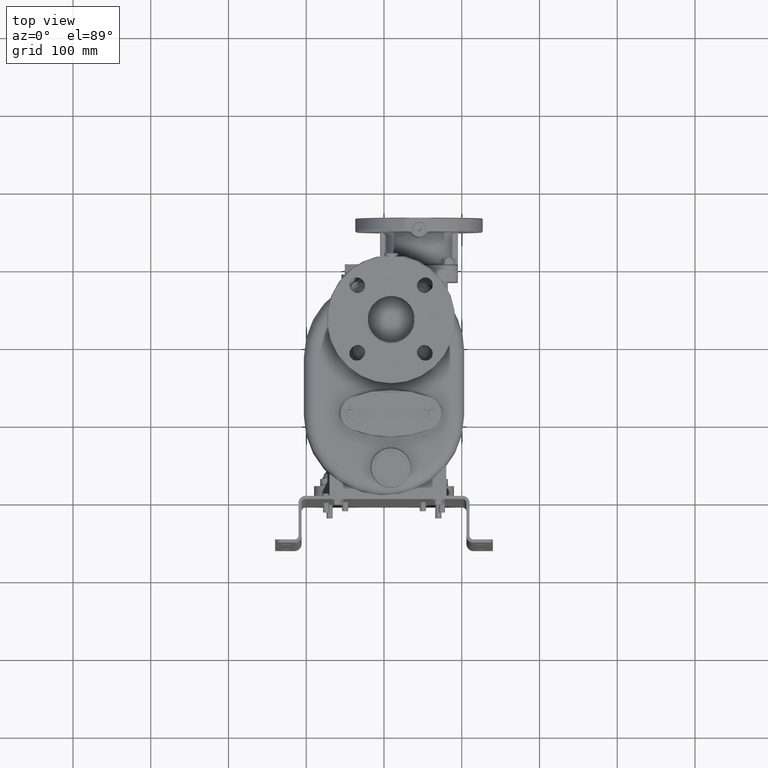
[diagram: clean part render]
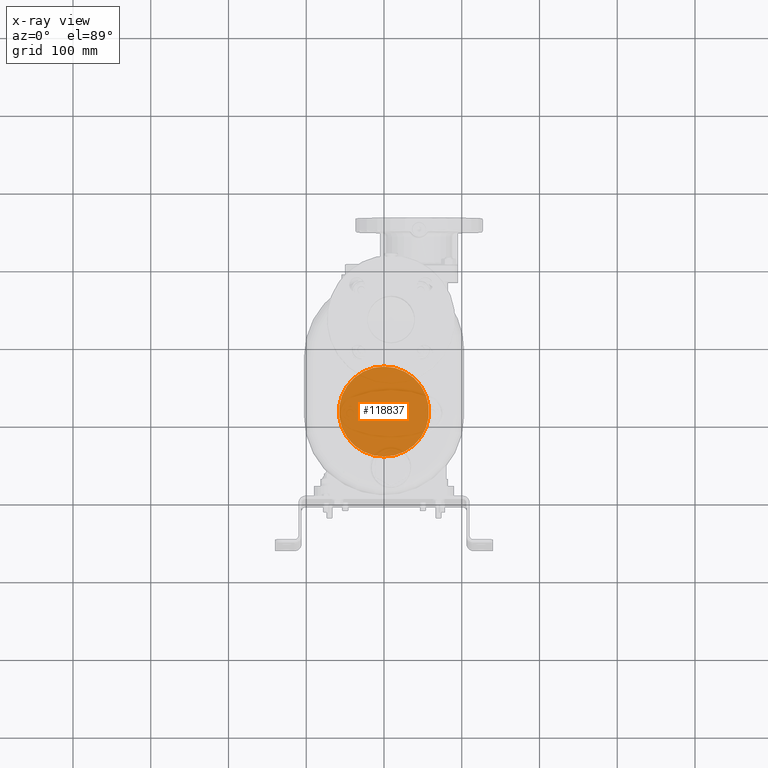
[diagram: x-ray — body ghosted, one internal face saturated and labeled with its STEP entity id]
A machine part, top view, then the same camera in x-ray: the body is ghosted and one INTERNAL B-rep face — a face not visible from any outside direction — is saturated and labeled: STEP entity #118837.
In plain terms, the highlighted planar face has unit normal (0, 0, 1).
Its self-contained STEP definition (entity closure, byte-faithful):
#31846=CARTESIAN_POINT('',(0.E0,1.1E2,-8.5E1));
#31847=DIRECTION('',(0.E0,0.E0,-1.E0));
#31848=DIRECTION('',(0.E0,-1.E0,0.E0));
#31849=AXIS2_PLACEMENT_3D('',#31846,#31847,#31848);
#31851=CARTESIAN_POINT('',(0.E0,1.1E2,-8.5E1));
#31852=DIRECTION('',(0.E0,0.E0,-1.E0));
#31853=DIRECTION('',(0.E0,1.E0,0.E0));
#31854=AXIS2_PLACEMENT_3D('',#31851,#31852,#31853);
#78682=CARTESIAN_POINT('',(-2.652116944205E-14,5.209774907794E1,-8.5E1));
#78683=CARTESIAN_POINT('',(1.927708796665E-14,1.679022509221E2,-8.5E1));
#78684=VERTEX_POINT('',#78682);
#78685=VERTEX_POINT('',#78683);
#118827=CARTESIAN_POINT('',(0.E0,1.1E2,-8.5E1));
#118828=DIRECTION('',(0.E0,0.E0,1.E0));
#118829=DIRECTION('',(-1.E0,0.E0,0.E0));
#118830=AXIS2_PLACEMENT_3D('',#118827,#118828,#118829);
#118831=PLANE('',#118830);
#118833=ORIENTED_EDGE('',*,*,#118832,.F.);
#118834=ORIENTED_EDGE('',*,*,#118817,.F.);
#118835=EDGE_LOOP('',(#118833,#118834));
#118836=FACE_OUTER_BOUND('',#118835,.F.);
#118837=ADVANCED_FACE('',(#118836),#118831,.F.);
#31850=CIRCLE('',#31849,5.790225092206E1);
#31855=CIRCLE('',#31854,5.790225092206E1);
#118817=EDGE_CURVE('',#78685,#78684,#31855,.T.);
#118832=EDGE_CURVE('',#78684,#78685,#31850,.T.);